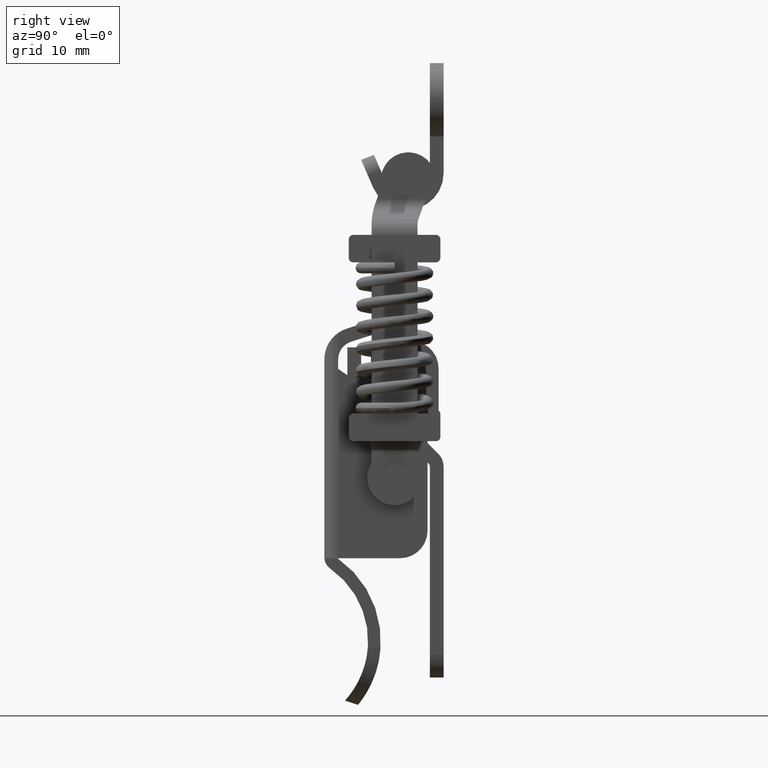
[diagram: clean part render]
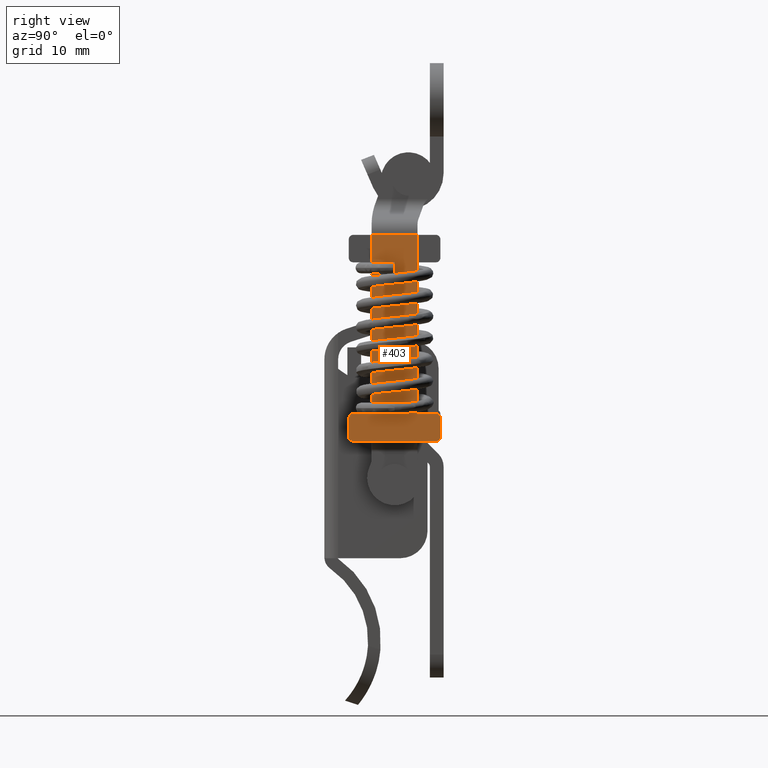
[diagram: same view with one face highlighted and labeled with its STEP entity id]
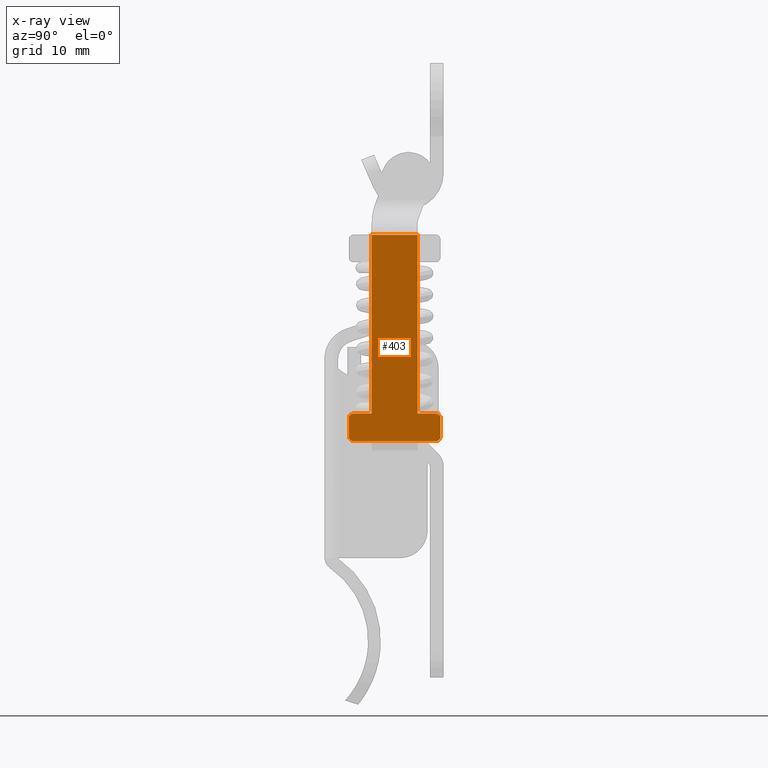
[diagram: x-ray of the same camera — body ghosted, the highlighted face saturated]
A machine part, right view. The second image highlights one B-rep face of the part: STEP entity #403.
The next image is the same camera in x-ray: the body ghosted, the highlighted face saturated — about 0% of this face is hidden behind the body in this view.
In plain terms, the highlighted planar face has unit normal (-1, -0, 0).
Its self-contained STEP definition (entity closure, byte-faithful):
#403=ADVANCED_FACE('',(#1860),#1859,.F.);
#1859=PLANE('',#5964);
#1860=FACE_OUTER_BOUND('',#5965,.T.);
#5961=CARTESIAN_POINT('',(7.49998908004E+00,2.68500000000E+01,-3.07493668192E+01));
#5962=DIRECTION('',(0.00000000000E+00,-1.00000000000E+00,0.00000000000E+00));
#5963=DIRECTION('',(0.00000000000E+00,0.00000000000E+00,1.00000000000E+00));
#5964=AXIS2_PLACEMENT_3D('',#5961,#5962,#5963);
#5965=EDGE_LOOP('',(#7245,#7246,#7247,#7248,#7249,#7250,#7251,#7252,#7253,#7254,#7255,#7256));
#7245=ORIENTED_EDGE('',*,*,#8216,.F.);
#7246=ORIENTED_EDGE('',*,*,#8217,.F.);
#7247=ORIENTED_EDGE('',*,*,#8218,.F.);
#7248=ORIENTED_EDGE('',*,*,#8219,.T.);
#7249=ORIENTED_EDGE('',*,*,#8220,.F.);
#7250=ORIENTED_EDGE('',*,*,#8221,.F.);
#7251=ORIENTED_EDGE('',*,*,#8222,.F.);
#7252=ORIENTED_EDGE('',*,*,#8223,.F.);
#7253=ORIENTED_EDGE('',*,*,#8224,.F.);
#7254=ORIENTED_EDGE('',*,*,#8225,.F.);
#7255=ORIENTED_EDGE('',*,*,#8226,.F.);
#7256=ORIENTED_EDGE('',*,*,#8106,.F.);
#8106=EDGE_CURVE('',#10384,#10356,#10391,.T.);
#8216=EDGE_CURVE('',#11131,#10384,#11132,.T.);
#8217=EDGE_CURVE('',#11138,#11131,#11139,.T.);
#8218=EDGE_CURVE('',#11145,#11138,#11146,.T.);
#8219=EDGE_CURVE('',#11145,#11152,#11153,.T.);
#8220=EDGE_CURVE('',#11159,#11152,#11160,.T.);
#8221=EDGE_CURVE('',#11166,#11159,#11167,.T.);
#8222=EDGE_CURVE('',#11173,#11166,#11174,.T.);
#8223=EDGE_CURVE('',#11180,#11173,#11181,.T.);
#8224=EDGE_CURVE('',#11187,#11180,#11188,.T.);
#8225=EDGE_CURVE('',#11194,#11187,#11195,.T.);
#8226=EDGE_CURVE('',#10356,#11194,#11201,.T.);
#10356=VERTEX_POINT('',#14317);
#10384=VERTEX_POINT('',#14337);
#10391=LINE('',#14342,#14343);
#11131=VERTEX_POINT('',#14821);
#11132=LINE('',#14822,#14823);
#11138=VERTEX_POINT('',#14825);
#11139=LINE('',#14826,#14827);
#11145=VERTEX_POINT('',#14829);
#11146=CIRCLE('',#14833,5.00000000000E-01);
#11152=VERTEX_POINT('',#14834);
#11153=LINE('',#14835,#14836);
#11159=VERTEX_POINT('',#14838);
#11160=CIRCLE('',#14842,5.00000000000E-01);
#11166=VERTEX_POINT('',#14843);
#11167=LINE('',#14844,#14845);
#11173=VERTEX_POINT('',#14847);
#11174=CIRCLE('',#14851,5.00000000000E-01);
#11180=VERTEX_POINT('',#14852);
#11181=LINE('',#14853,#14854);
#11187=VERTEX_POINT('',#14856);
#11188=CIRCLE('',#14860,5.00000000000E-01);
#11194=VERTEX_POINT('',#14861);
#11195=LINE('',#14862,#14863);
#11201=LINE('',#14865,#14866);
#14317=CARTESIAN_POINT('',(-1.00001091999E+00,2.68500000000E+01,-6.00633180821E+00));
#14337=CARTESIAN_POINT('',(3.99998908001E+00,2.68500000000E+01,-6.00633180821E+00));
#14342=CARTESIAN_POINT('',(3.99998908001E+00,2.68500000000E+01,-6.00633180821E+00));
#14343=VECTOR('',#14344,5.00000000000E+00);
#14344=DIRECTION('',(-1.00000000000E+00,0.00000000000E+00,0.00000000000E+00));
#14821=CARTESIAN_POINT('',(3.99998908003E+00,2.68500000000E+01,-2.55000000000E+01));
#14822=CARTESIAN_POINT('',(3.99998908003E+00,2.68500000000E+01,-2.55000000000E+01));
#14823=VECTOR('',#14824,1.94936681918E+01);
#14824=DIRECTION('',(-1.03909622552E-12,0.00000000000E+00,1.00000000000E+00));
#14825=CARTESIAN_POINT('',(5.99998908003E+00,2.68500000000E+01,-2.55000000000E+01));
#14826=CARTESIAN_POINT('',(5.99998908003E+00,2.68500000000E+01,-2.55000000000E+01));
#14827=VECTOR('',#14828,2.00000000000E+00);
#14828=DIRECTION('',(-1.00000000000E+00,0.00000000000E+00,-1.04982689209E-12));
#14829=CARTESIAN_POINT('',(6.49998908004E+00,2.68500000000E+01,-2.60000000000E+01));
#14830=CARTESIAN_POINT('',(5.99998908003E+00,2.68500000000E+01,-2.60000000000E+01));
#14831=DIRECTION('',(0.00000000000E+00,-1.00000000000E+00,0.00000000000E+00));
#14832=DIRECTION('',(-0.00000000000E+00,-0.00000000000E+00,-1.00000000000E+00));
#14833=AXIS2_PLACEMENT_3D('',#14830,#14831,#14832);
#14834=CARTESIAN_POINT('',(6.49998908004E+00,2.68500000000E+01,-2.80000000000E+01));
#14835=CARTESIAN_POINT('',(6.49998908004E+00,2.68500000000E+01,-2.60000000000E+01));
#14836=VECTOR('',#14837,2.00000000000E+00);
#14837=DIRECTION('',(0.00000000000E+00,0.00000000000E+00,-1.00000000000E+00));
#14838=CARTESIAN_POINT('',(5.99998908004E+00,2.68500000000E+01,-2.85000000000E+01));
#14839=CARTESIAN_POINT('',(5.99998908004E+00,2.68500000000E+01,-2.80000000000E+01));
#14840=DIRECTION('',(0.00000000000E+00,-1.00000000000E+00,0.00000000000E+00));
#14841=DIRECTION('',(-0.00000000000E+00,-0.00000000000E+00,-1.00000000000E+00));
#14842=AXIS2_PLACEMENT_3D('',#14839,#14840,#14841);
#14843=CARTESIAN_POINT('',(-3.00001091996E+00,2.68500000000E+01,-2.85000000000E+01));
#14844=CARTESIAN_POINT('',(-3.00001091996E+00,2.68500000000E+01,-2.85000000000E+01));
#14845=VECTOR('',#14846,9.00000000000E+00);
#14846=DIRECTION('',(1.00000000000E+00,0.00000000000E+00,1.05831393032E-12));
#14847=CARTESIAN_POINT('',(-3.50001091996E+00,2.68500000000E+01,-2.80000000000E+01));
#14848=CARTESIAN_POINT('',(-3.00001091996E+00,2.68500000000E+01,-2.80000000000E+01));
#14849=DIRECTION('',(0.00000000000E+00,-1.00000000000E+00,0.00000000000E+00));
#14850=DIRECTION('',(-0.00000000000E+00,-0.00000000000E+00,-1.00000000000E+00));
#14851=AXIS2_PLACEMENT_3D('',#14848,#14849,#14850);
#14852=CARTESIAN_POINT('',(-3.50001091997E+00,2.68500000000E+01,-2.60000000000E+01));
#14853=CARTESIAN_POINT('',(-3.50001091996E+00,2.68500000000E+01,-2.60000000000E+01));
#14854=VECTOR('',#14855,2.00000000000E+00);
#14855=DIRECTION('',(0.00000000000E+00,0.00000000000E+00,-1.00000000000E+00));
#14856=CARTESIAN_POINT('',(-3.00001091997E+00,2.68500000000E+01,-2.55000000000E+01));
#14857=CARTESIAN_POINT('',(-3.00001091997E+00,2.68500000000E+01,-2.60000000000E+01));
#14858=DIRECTION('',(0.00000000000E+00,-1.00000000000E+00,0.00000000000E+00));
#14859=DIRECTION('',(-0.00000000000E+00,-0.00000000000E+00,-1.00000000000E+00));
#14860=AXIS2_PLACEMENT_3D('',#14857,#14858,#14859);
#14861=CARTESIAN_POINT('',(-1.00001091997E+00,2.68500000000E+01,-2.55000000000E+01));
#14862=CARTESIAN_POINT('',(-1.00001091997E+00,2.68500000000E+01,-2.55000000000E+01));
#14863=VECTOR('',#14864,2.00000000000E+00);
#14864=DIRECTION('',(-1.00000000000E+00,0.00000000000E+00,-1.05337960576E-12));
#14865=CARTESIAN_POINT('',(-1.00001091999E+00,2.68500000000E+01,-6.00633180821E+00));
#14866=VECTOR('',#14867,1.94936681918E+01);
#14867=DIRECTION('',(1.05446214686E-12,0.00000000000E+00,-1.00000000000E+00));